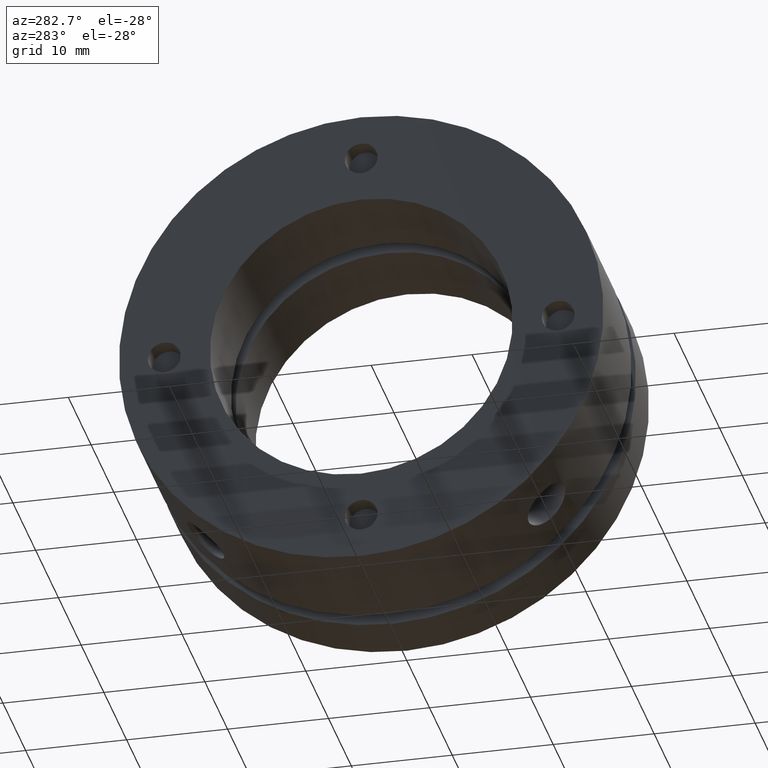
[diagram: clean part render]
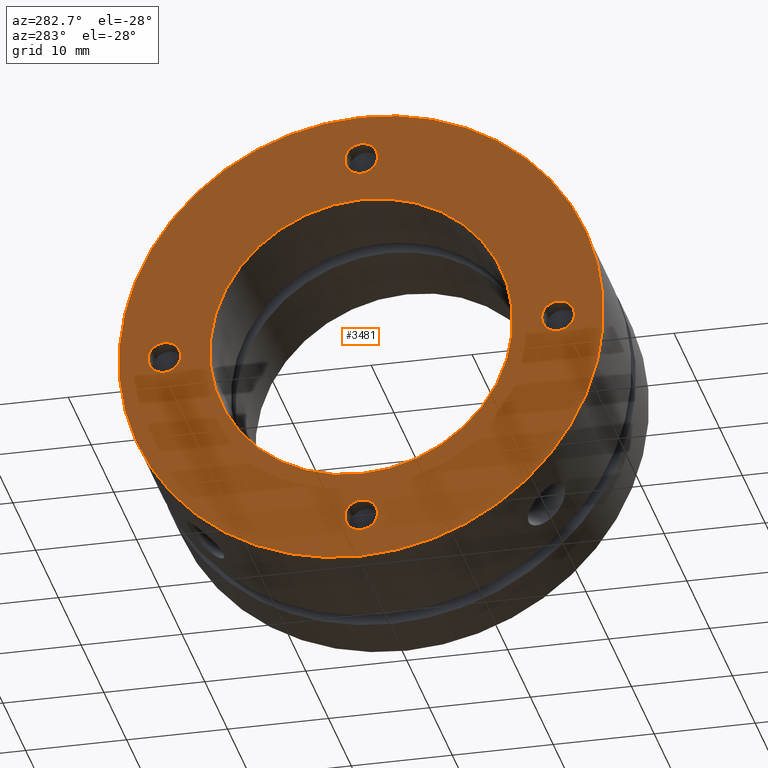
[diagram: same view with one face highlighted and labeled with its STEP entity id]
A machine part, auxiliary view. The second image highlights one B-rep face of the part: STEP entity #3481.
In plain terms, the highlighted planar face has unit normal (-1, 0, 0).
Its self-contained STEP definition (entity closure, byte-faithful):
#183 = EDGE_LOOP ( 'NONE', ( #2973, #2972 ) ) ;
#187 = ORIENTED_EDGE ( 'NONE', *, *, #3501, .F. ) ;
#189 = ORIENTED_EDGE ( 'NONE', *, *, #3324, .T. ) ;
#190 = EDGE_LOOP ( 'NONE', ( #227, #187 ) ) ;
#197 = EDGE_LOOP ( 'NONE', ( #2979, #2978 ) ) ;
#205 = EDGE_LOOP ( 'NONE', ( #2971, #189 ) ) ;
#210 = EDGE_LOOP ( 'NONE', ( #2975, #2974 ) ) ;
#222 = EDGE_LOOP ( 'NONE', ( #2977, #2976 ) ) ;
#227 = ORIENTED_EDGE ( 'NONE', *, *, #2936, .F. ) ;
#269 = VERTEX_POINT ( 'NONE', #1120 ) ;
#271 = VERTEX_POINT ( 'NONE', #1107 ) ;
#277 = VERTEX_POINT ( 'NONE', #1123 ) ;
#280 = VERTEX_POINT ( 'NONE', #1124 ) ;
#301 = VERTEX_POINT ( 'NONE', #1178 ) ;
#305 = VERTEX_POINT ( 'NONE', #1182 ) ;
#336 = VERTEX_POINT ( 'NONE', #1212 ) ;
#340 = VERTEX_POINT ( 'NONE', #1216 ) ;
#341 = VERTEX_POINT ( 'NONE', #1217 ) ;
#350 = VERTEX_POINT ( 'NONE', #1226 ) ;
#356 = VERTEX_POINT ( 'NONE', #1232 ) ;
#362 = VERTEX_POINT ( 'NONE', #1238 ) ;
#488 = AXIS2_PLACEMENT_3D ( 'NONE', #1271, #1272, #1273 ) ;
#558 = CIRCLE ( 'NONE', #488, 1.621000000000000000 ) ;
#807 = EDGE_CURVE ( 'NONE', #350, #301, #558, .T. ) ;
#1107 = CARTESIAN_POINT ( 'NONE',  ( -4.336808689942017700E-015, -2.388060999999999800E-015, -17.87900000000001200 ) ) ;
#1120 = CARTESIAN_POINT ( 'NONE',  ( -4.336808689942017700E-015, -2.189545753858213600E-015, -21.12100000000001600 ) ) ;
#1123 = CARTESIAN_POINT ( 'NONE',  ( -4.336808689942017700E-015, -19.50000000000001400, -1.620999999999998700 ) ) ;
#1124 = CARTESIAN_POINT ( 'NONE',  ( -4.336808689942017700E-015, 0.0000000000000000000, 21.12100000000001600 ) ) ;
#1178 = CARTESIAN_POINT ( 'NONE',  ( -4.336808689942017700E-015, 19.50000000000001400, -1.621000000000003800 ) ) ;
#1182 = CARTESIAN_POINT ( 'NONE',  ( -5.204170427930421300E-015, 2.939152317953648300E-015, 24.00000000000000400 ) ) ;
#1212 = CARTESIAN_POINT ( 'NONE',  ( -4.336808689942017700E-015, 1.985152461417858200E-016, 17.87900000000001200 ) ) ;
#1216 = CARTESIAN_POINT ( 'NONE',  ( -5.204170427930421300E-015, 0.0000000000000000000, -24.00000000000000400 ) ) ;
#1217 = CARTESIAN_POINT ( 'NONE',  ( -3.469446951953614200E-015, 1.836970198721029600E-015, 15.00000000000000000 ) ) ;
#1226 = CARTESIAN_POINT ( 'NONE',  ( -4.336808689942017700E-015, 19.50000000000001400, 1.620999999999996400 ) ) ;
#1232 = CARTESIAN_POINT ( 'NONE',  ( -3.469446951953614200E-015, 0.0000000000000000000, -15.00000000000000000 ) ) ;
#1238 = CARTESIAN_POINT ( 'NONE',  ( -4.336808689942017700E-015, -19.50000000000001400, 1.621000000000001300 ) ) ;
#1271 = CARTESIAN_POINT ( 'NONE',  ( -4.336808689942017700E-015, 19.50000000000001400, -3.582092000000000200E-015 ) ) ;
#1272 = DIRECTION ( 'NONE',  ( 1.000000000000000000, -0.0000000000000000000, -0.0000000000000000000 ) ) ;
#1273 = DIRECTION ( 'NONE',  ( 0.0000000000000000000, 0.0000000000000000000, 1.000000000000000000 ) ) ;
#1930 = CARTESIAN_POINT ( 'NONE',  ( -5.204170427930421300E-015, 0.0000000000000000000, 0.0000000000000000000 ) ) ;
#1931 = DIRECTION ( 'NONE',  ( 1.000000000000000000, 0.0000000000000000000, 0.0000000000000000000 ) ) ;
#1932 = DIRECTION ( 'NONE',  ( 0.0000000000000000000, 0.0000000000000000000, -1.000000000000000000 ) ) ;
#1991 = CARTESIAN_POINT ( 'NONE',  ( -3.469446951953614200E-015, 0.0000000000000000000, 0.0000000000000000000 ) ) ;
#1992 = DIRECTION ( 'NONE',  ( 1.000000000000000000, 0.0000000000000000000, 0.0000000000000000000 ) ) ;
#1993 = DIRECTION ( 'NONE',  ( 0.0000000000000000000, 0.0000000000000000000, -1.000000000000000000 ) ) ;
#2120 = CARTESIAN_POINT ( 'NONE',  ( -4.336808689942017700E-015, 0.0000000000000000000, 19.50000000000001400 ) ) ;
#2121 = DIRECTION ( 'NONE',  ( 1.000000000000000000, -0.0000000000000000000, -0.0000000000000000000 ) ) ;
#2122 = DIRECTION ( 'NONE',  ( 0.0000000000000000000, 0.0000000000000000000, 1.000000000000000000 ) ) ;
#2130 = CARTESIAN_POINT ( 'NONE',  ( -4.336808689942017700E-015, -19.50000000000001400, 1.194031000000000000E-015 ) ) ;
#2131 = DIRECTION ( 'NONE',  ( 1.000000000000000000, -0.0000000000000000000, -0.0000000000000000000 ) ) ;
#2132 = DIRECTION ( 'NONE',  ( 0.0000000000000000000, 0.0000000000000000000, 1.000000000000000000 ) ) ;
#2208 = CARTESIAN_POINT ( 'NONE',  ( -4.336808689942017700E-015, 19.50000000000001400, -3.582092000000000200E-015 ) ) ;
#2209 = DIRECTION ( 'NONE',  ( 1.000000000000000000, -0.0000000000000000000, -0.0000000000000000000 ) ) ;
#2210 = DIRECTION ( 'NONE',  ( 0.0000000000000000000, 0.0000000000000000000, 1.000000000000000000 ) ) ;
#2212 = CARTESIAN_POINT ( 'NONE',  ( -4.336808689942017700E-015, -2.388060999999999800E-015, -19.50000000000001400 ) ) ;
#2213 = DIRECTION ( 'NONE',  ( 1.000000000000000000, -0.0000000000000000000, -0.0000000000000000000 ) ) ;
#2214 = DIRECTION ( 'NONE',  ( 0.0000000000000000000, 0.0000000000000000000, 1.000000000000000000 ) ) ;
#2264 = DIRECTION ( 'NONE',  ( -1.000000000000000000, 0.0000000000000000000, 0.0000000000000000000 ) ) ;
#2266 = PLANE ( 'NONE',  #2870 ) ;
#2267 = CARTESIAN_POINT ( 'NONE',  ( -4.069833000000000400E-015, 19.50000000000000000, 0.0000000000000000000 ) ) ;
#2268 = DIRECTION ( 'NONE',  ( 0.0000000000000000000, 0.0000000000000000000, 1.000000000000000000 ) ) ;
#2274 = CARTESIAN_POINT ( 'NONE',  ( -4.336808689942017700E-015, -2.388060999999999800E-015, -19.50000000000001400 ) ) ;
#2275 = DIRECTION ( 'NONE',  ( 1.000000000000000000, -0.0000000000000000000, -0.0000000000000000000 ) ) ;
#2276 = DIRECTION ( 'NONE',  ( 0.0000000000000000000, 0.0000000000000000000, 1.000000000000000000 ) ) ;
#2342 = CARTESIAN_POINT ( 'NONE',  ( -4.336808689942017700E-015, 0.0000000000000000000, 19.50000000000001400 ) ) ;
#2343 = DIRECTION ( 'NONE',  ( 1.000000000000000000, -0.0000000000000000000, -0.0000000000000000000 ) ) ;
#2344 = DIRECTION ( 'NONE',  ( 0.0000000000000000000, 0.0000000000000000000, 1.000000000000000000 ) ) ;
#2345 = CARTESIAN_POINT ( 'NONE',  ( -3.469446951953614200E-015, 0.0000000000000000000, 0.0000000000000000000 ) ) ;
#2346 = DIRECTION ( 'NONE',  ( 1.000000000000000000, 0.0000000000000000000, 0.0000000000000000000 ) ) ;
#2347 = DIRECTION ( 'NONE',  ( 0.0000000000000000000, 0.0000000000000000000, -1.000000000000000000 ) ) ;
#2348 = CARTESIAN_POINT ( 'NONE',  ( -5.204170427930421300E-015, 0.0000000000000000000, 0.0000000000000000000 ) ) ;
#2349 = DIRECTION ( 'NONE',  ( 1.000000000000000000, 0.0000000000000000000, 0.0000000000000000000 ) ) ;
#2350 = DIRECTION ( 'NONE',  ( 0.0000000000000000000, 0.0000000000000000000, -1.000000000000000000 ) ) ;
#2353 = CARTESIAN_POINT ( 'NONE',  ( -4.336808689942017700E-015, -19.50000000000001400, 1.194031000000000000E-015 ) ) ;
#2354 = DIRECTION ( 'NONE',  ( 1.000000000000000000, -0.0000000000000000000, -0.0000000000000000000 ) ) ;
#2355 = DIRECTION ( 'NONE',  ( 0.0000000000000000000, 0.0000000000000000000, 1.000000000000000000 ) ) ;
#2631 = CIRCLE ( 'NONE', #3366, 24.00000000000000400 ) ;
#2647 = CIRCLE ( 'NONE', #3370, 15.00000000000000000 ) ;
#2663 = CIRCLE ( 'NONE', #3374, 1.621000000000000900 ) ;
#2674 = CIRCLE ( 'NONE', #3376, 1.621000000000000000 ) ;
#2709 = CIRCLE ( 'NONE', #3399, 1.621000000000000000 ) ;
#2710 = CIRCLE ( 'NONE', #3400, 1.621000000000000900 ) ;
#2734 = FACE_BOUND ( 'NONE', #197, .T. ) ;
#2743 = FACE_BOUND ( 'NONE', #183, .T. ) ;
#2745 = FACE_BOUND ( 'NONE', #210, .T. ) ;
#2747 = FACE_BOUND ( 'NONE', #205, .T. ) ;
#2749 = FACE_BOUND ( 'NONE', #222, .T. ) ;
#2750 = FACE_OUTER_BOUND ( 'NONE', #190, .T. ) ;
#2751 = CIRCLE ( 'NONE', #2866, 1.621000000000000900 ) ;
#2775 = CIRCLE ( 'NONE', #2877, 1.621000000000000900 ) ;
#2778 = CIRCLE ( 'NONE', #2878, 15.00000000000000000 ) ;
#2779 = CIRCLE ( 'NONE', #2879, 24.00000000000000400 ) ;
#2780 = CIRCLE ( 'NONE', #2880, 1.621000000000000000 ) ;
#2866 = AXIS2_PLACEMENT_3D ( 'NONE', #2274, #2275, #2276 ) ;
#2870 = AXIS2_PLACEMENT_3D ( 'NONE', #2267, #2264, #2268 ) ;
#2877 = AXIS2_PLACEMENT_3D ( 'NONE', #2342, #2343, #2344 ) ;
#2878 = AXIS2_PLACEMENT_3D ( 'NONE', #2345, #2346, #2347 ) ;
#2879 = AXIS2_PLACEMENT_3D ( 'NONE', #2348, #2349, #2350 ) ;
#2880 = AXIS2_PLACEMENT_3D ( 'NONE', #2353, #2354, #2355 ) ;
#2936 = EDGE_CURVE ( 'NONE', #340, #305, #2631, .T. ) ;
#2948 = EDGE_CURVE ( 'NONE', #341, #356, #2647, .T. ) ;
#2963 = EDGE_CURVE ( 'NONE', #280, #336, #2663, .T. ) ;
#2967 = EDGE_CURVE ( 'NONE', #362, #277, #2674, .T. ) ;
#2971 = ORIENTED_EDGE ( 'NONE', *, *, #807, .T. ) ;
#2972 = ORIENTED_EDGE ( 'NONE', *, *, #3325, .T. ) ;
#2973 = ORIENTED_EDGE ( 'NONE', *, *, #3483, .T. ) ;
#2974 = ORIENTED_EDGE ( 'NONE', *, *, #3502, .T. ) ;
#2975 = ORIENTED_EDGE ( 'NONE', *, *, #2967, .T. ) ;
#2976 = ORIENTED_EDGE ( 'NONE', *, *, #3499, .T. ) ;
#2977 = ORIENTED_EDGE ( 'NONE', *, *, #2963, .T. ) ;
#2978 = ORIENTED_EDGE ( 'NONE', *, *, #2948, .T. ) ;
#2979 = ORIENTED_EDGE ( 'NONE', *, *, #3500, .T. ) ;
#3324 = EDGE_CURVE ( 'NONE', #301, #350, #2709, .T. ) ;
#3325 = EDGE_CURVE ( 'NONE', #269, #271, #2710, .T. ) ;
#3366 = AXIS2_PLACEMENT_3D ( 'NONE', #1930, #1931, #1932 ) ;
#3370 = AXIS2_PLACEMENT_3D ( 'NONE', #1991, #1992, #1993 ) ;
#3374 = AXIS2_PLACEMENT_3D ( 'NONE', #2120, #2121, #2122 ) ;
#3376 = AXIS2_PLACEMENT_3D ( 'NONE', #2130, #2131, #2132 ) ;
#3399 = AXIS2_PLACEMENT_3D ( 'NONE', #2208, #2209, #2210 ) ;
#3400 = AXIS2_PLACEMENT_3D ( 'NONE', #2212, #2213, #2214 ) ;
#3481 = ADVANCED_FACE ( 'NONE', ( #2734, #2749, #2745, #2743, #2747, #2750 ), #2266, .T. ) ;
#3483 = EDGE_CURVE ( 'NONE', #271, #269, #2751, .T. ) ;
#3499 = EDGE_CURVE ( 'NONE', #336, #280, #2775, .T. ) ;
#3500 = EDGE_CURVE ( 'NONE', #356, #341, #2778, .T. ) ;
#3501 = EDGE_CURVE ( 'NONE', #305, #340, #2779, .T. ) ;
#3502 = EDGE_CURVE ( 'NONE', #277, #362, #2780, .T. ) ;